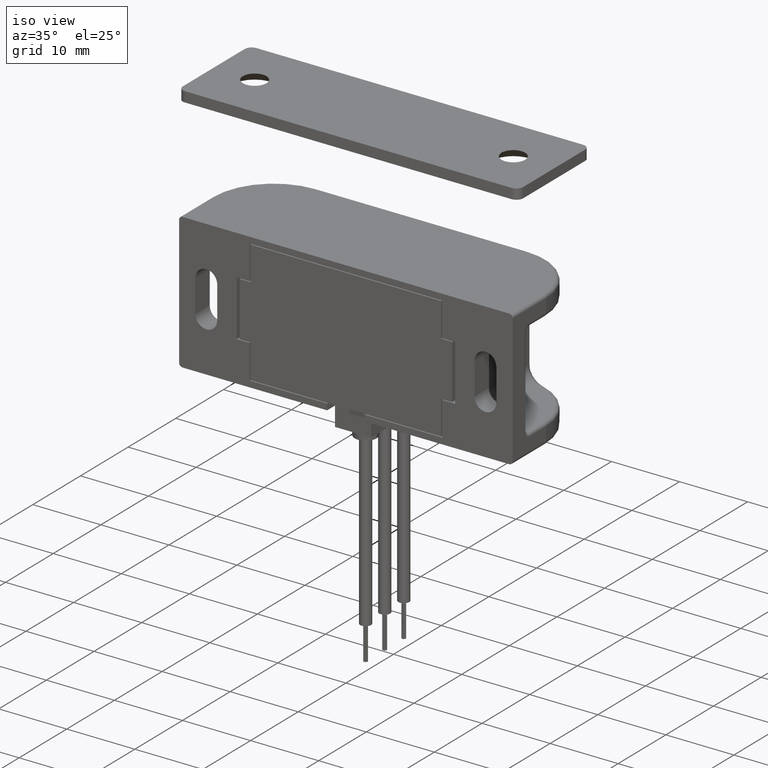
[diagram: clean part render]
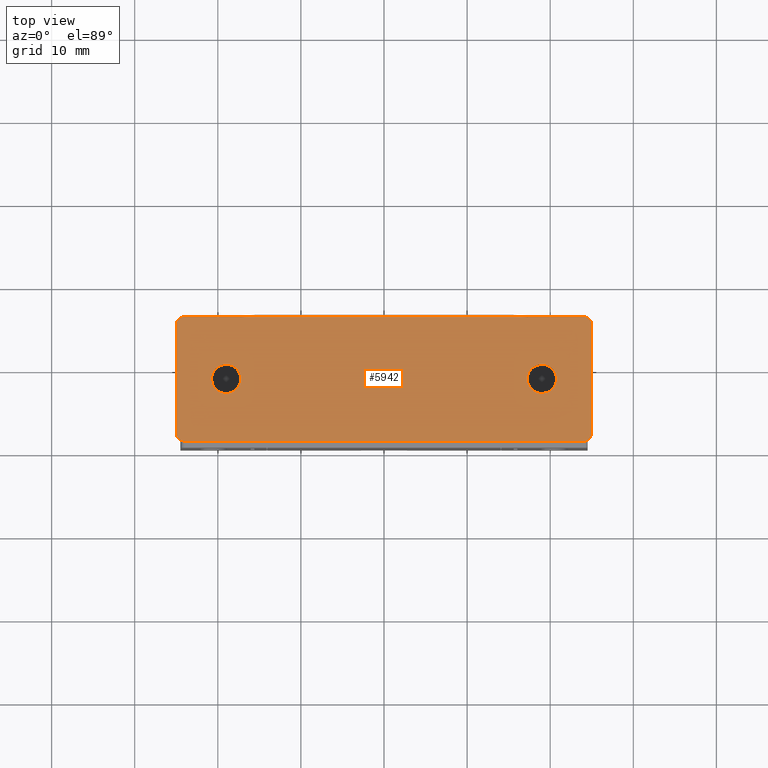
[diagram: tour spotlight — one face highlighted and labeled with its STEP entity id]
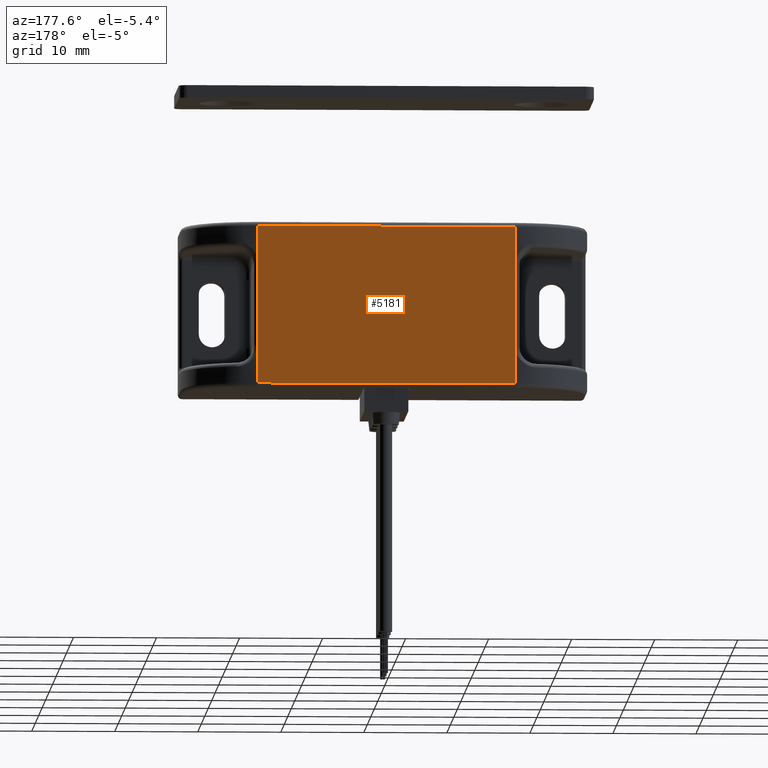
[diagram: tour spotlight — one face highlighted and labeled with its STEP entity id]
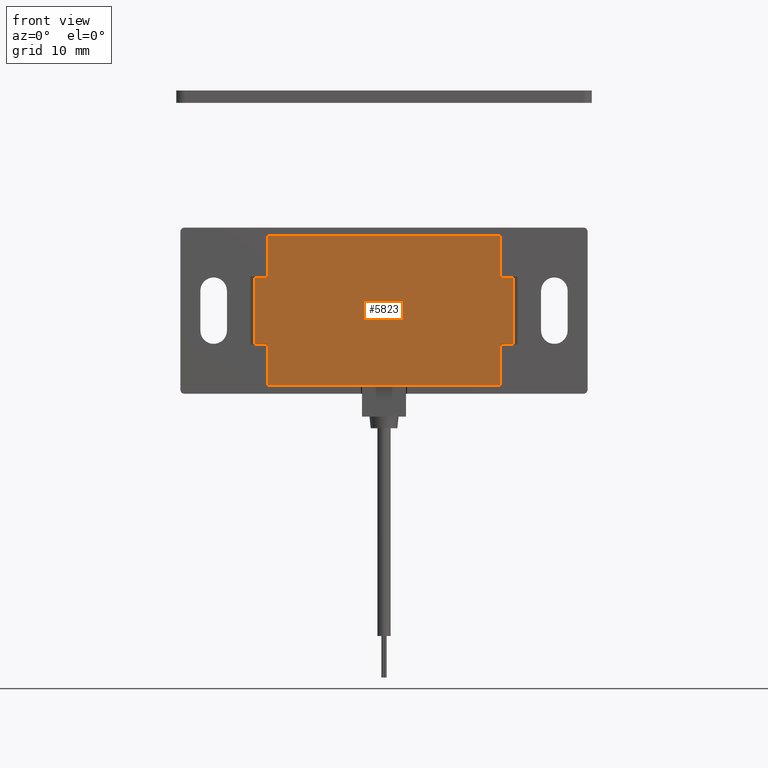
[diagram: tour spotlight — one face highlighted and labeled with its STEP entity id]
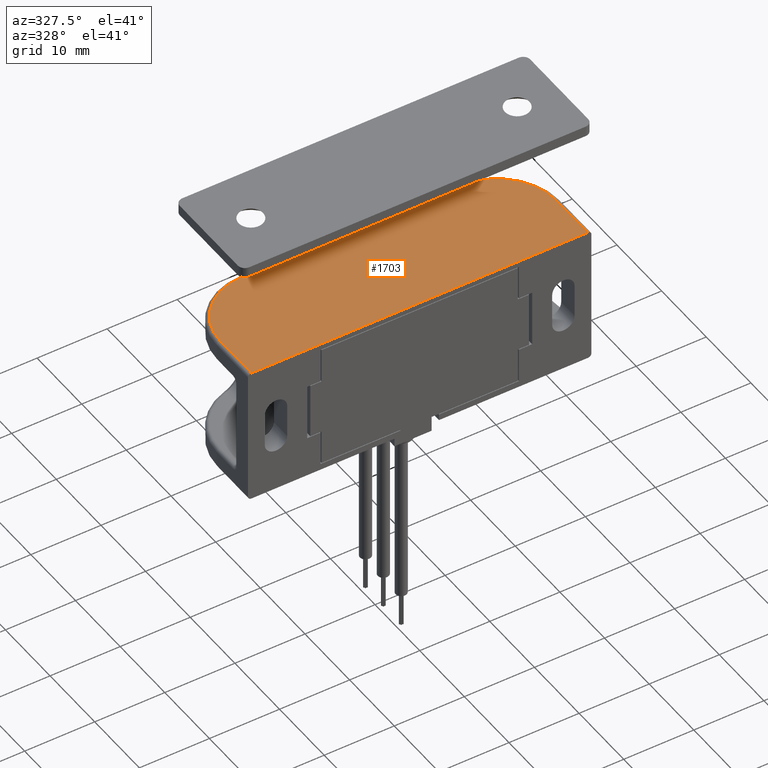
[diagram: tour spotlight — one face highlighted and labeled with its STEP entity id]
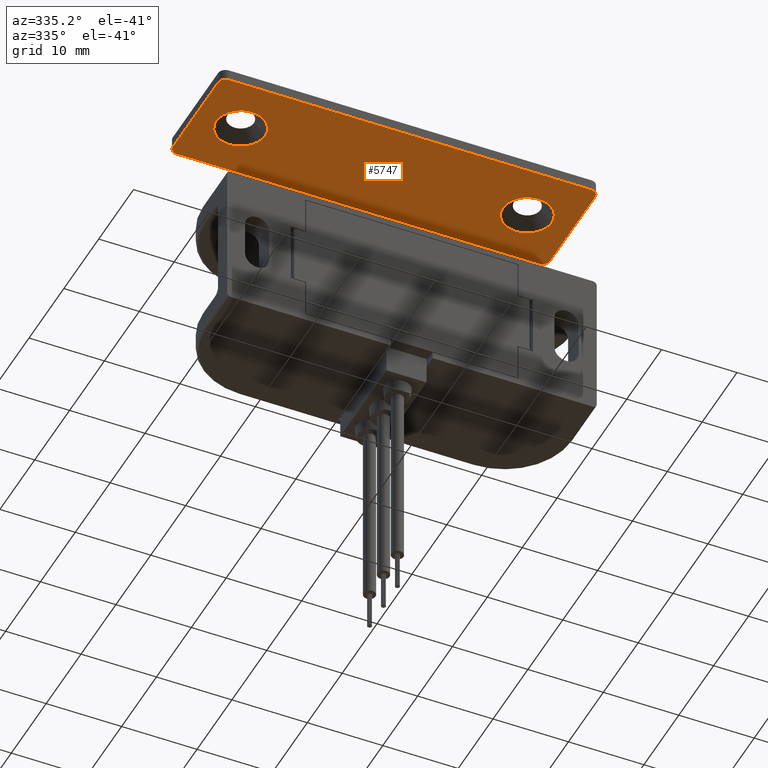
[diagram: tour spotlight — one face highlighted and labeled with its STEP entity id]
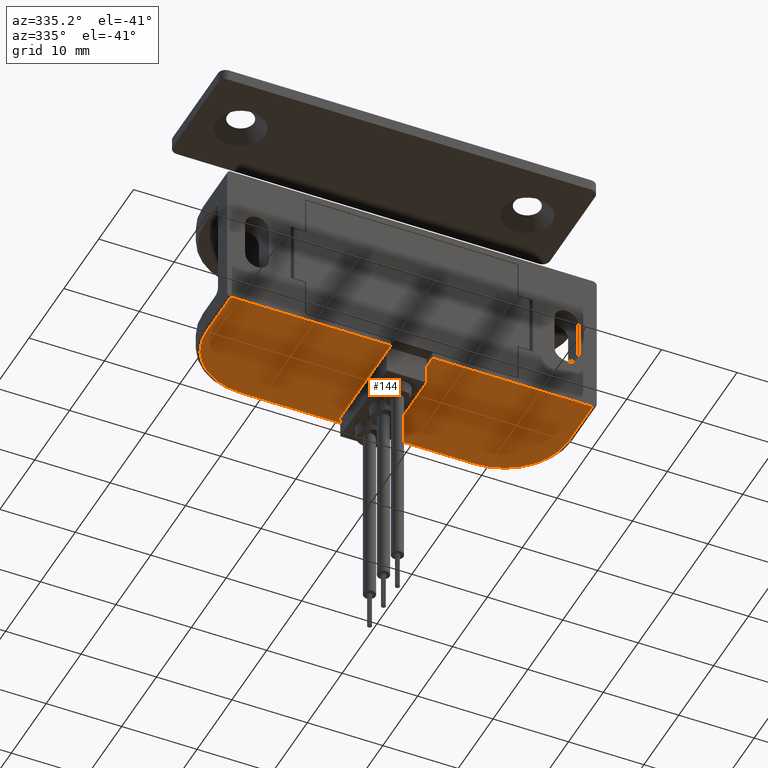
[diagram: tour spotlight — one face highlighted and labeled with its STEP entity id]
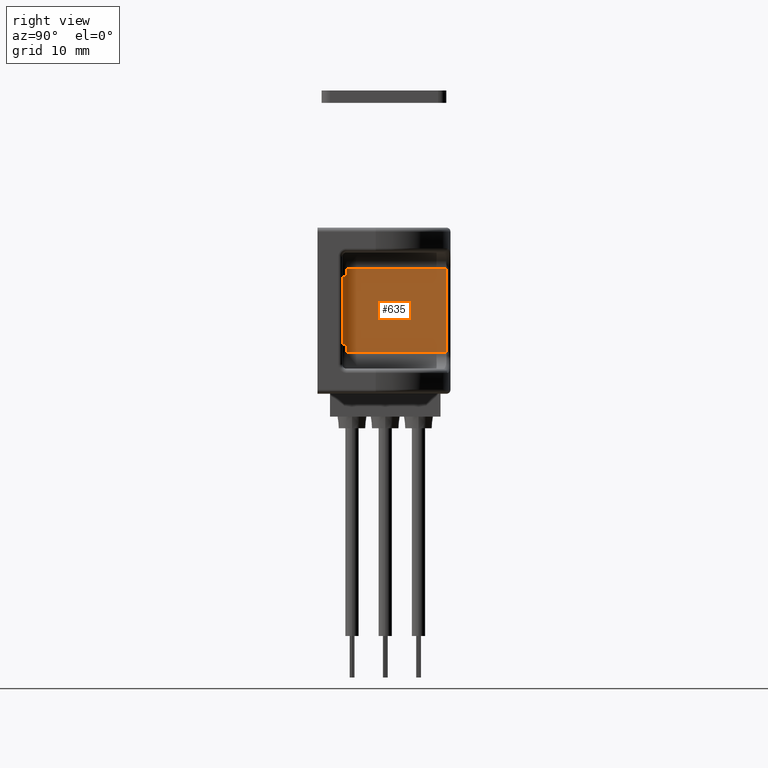
[diagram: tour spotlight — one face highlighted and labeled with its STEP entity id]
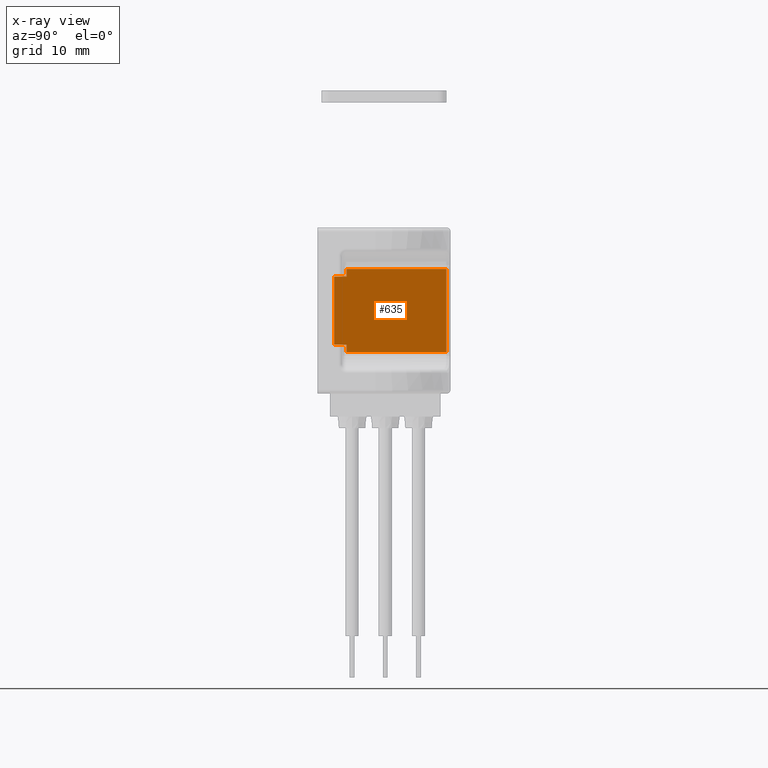
[diagram: x-ray of the same camera — body ghosted, this tour face saturated]
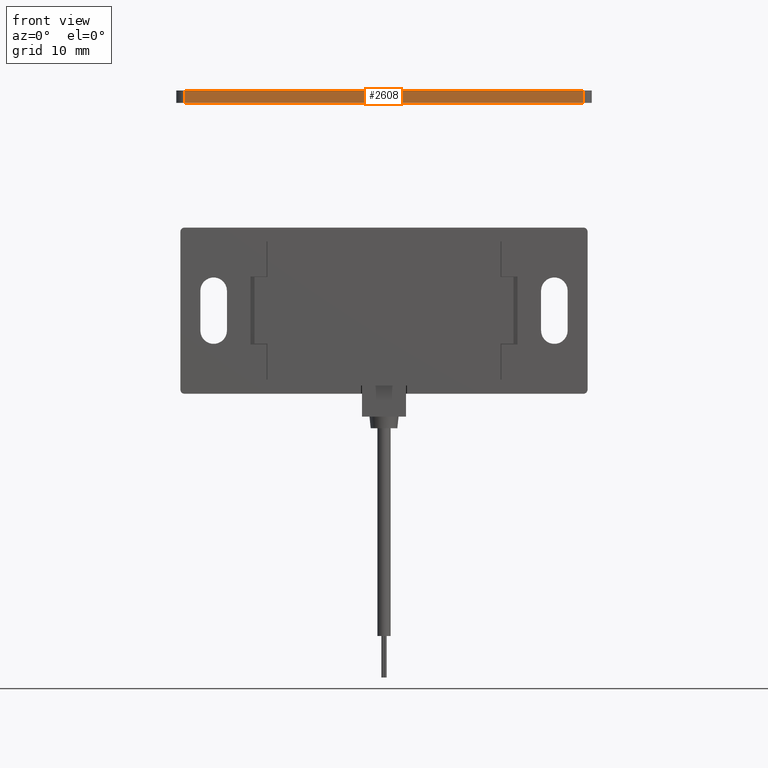
[diagram: tour spotlight — one face highlighted and labeled with its STEP entity id]
A machine part: a face-by-face anatomy tour. The part has 211 B-rep faces; the first image is the clean iso view, then the 8 largest visible faces are spotlighted one at a time (largest first), each with its STEP entity span.

Face 1 — top view, entity #5942. In plain terms, the highlighted planar face has unit normal (0, 0, -1).
Definition (entity closure, byte-faithful):
#92 = DIRECTION ( 'NONE',  ( 1.000000000000000000, 0.0000000000000000000, 0.0000000000000000000 ) ) ;
#93 = EDGE_CURVE ( 'NONE', #952, #228, #2428, .T. ) ;
#228 = VERTEX_POINT ( 'NONE', #3108 ) ;
#234 = CARTESIAN_POINT ( 'NONE',  ( 24.00000000000000400, -7.499999999999999100, 1.500000000000000000 ) ) ;
#272 = CARTESIAN_POINT ( 'NONE',  ( 17.24999999999999600, -3.061616997868384100E-016, 1.500000000000000200 ) ) ;
#283 = CARTESIAN_POINT ( 'NONE',  ( -24.99999999999999600, 7.500000000000000900, 1.500000000000000000 ) ) ;
#291 = VERTEX_POINT ( 'NONE', #1775 ) ;
#371 = DIRECTION ( 'NONE',  ( -0.0000000000000000000, -0.0000000000000000000, 1.000000000000000000 ) ) ;
#404 = FACE_BOUND ( 'NONE', #2111, .T. ) ;
#442 = ORIENTED_EDGE ( 'NONE', *, *, #5309, .T. ) ;
#477 = ORIENTED_EDGE ( 'NONE', *, *, #5220, .T. ) ;
#527 = DIRECTION ( 'NONE',  ( -0.0000000000000000000, -0.0000000000000000000, 1.000000000000000000 ) ) ;
#646 = ORIENTED_EDGE ( 'NONE', *, *, #6115, .F. ) ;
#842 = CARTESIAN_POINT ( 'NONE',  ( -19.00000000000000000, 0.0000000000000000000, 1.500000000000000200 ) ) ;
#843 = AXIS2_PLACEMENT_3D ( 'NONE', #4383, #6429, #3421 ) ;
#846 = VERTEX_POINT ( 'NONE', #5565 ) ;
#868 = EDGE_CURVE ( 'NONE', #846, #4777, #1376, .T. ) ;
#952 = VERTEX_POINT ( 'NONE', #4684 ) ;
#1042 = LINE ( 'NONE', #283, #2248 ) ;
#1104 = VERTEX_POINT ( 'NONE', #5682 ) ;
#1184 = EDGE_CURVE ( 'NONE', #228, #1104, #4969, .T. ) ;
#1220 = VERTEX_POINT ( 'NONE', #4673 ) ;
#1227 = AXIS2_PLACEMENT_3D ( 'NONE', #2276, #5773, #2789 ) ;
#1232 = EDGE_CURVE ( 'NONE', #5188, #1558, #2167, .T. ) ;
#1357 = DIRECTION ( 'NONE',  ( -1.000000000000000000, 0.0000000000000000000, 0.0000000000000000000 ) ) ;
#1376 = LINE ( 'NONE', #5217, #2732 ) ;
#1438 = ORIENTED_EDGE ( 'NONE', *, *, #5355, .T. ) ;
#1556 = CARTESIAN_POINT ( 'NONE',  ( 25.00000000000000400, 6.500000000000000000, 1.500000000000000000 ) ) ;
#1558 = VERTEX_POINT ( 'NONE', #272 ) ;
#1653 = AXIS2_PLACEMENT_3D ( 'NONE', #5431, #2447, #5934 ) ;
#1775 = CARTESIAN_POINT ( 'NONE',  ( -17.24999999999999600, 3.061616997868384100E-016, 1.500000000000000200 ) ) ;
#1843 = CIRCLE ( 'NONE', #4243, 1.000000000000000900 ) ;
#2061 = DIRECTION ( 'NONE',  ( -0.0000000000000000000, 0.0000000000000000000, 1.000000000000000000 ) ) ;
#2066 = ORIENTED_EDGE ( 'NONE', *, *, #3510, .T. ) ;
#2111 = EDGE_LOOP ( 'NONE', ( #3305, #646 ) ) ;
#2113 = DIRECTION ( 'NONE',  ( -0.0000000000000000000, -0.0000000000000000000, -1.000000000000000000 ) ) ;
#2167 = CIRCLE ( 'NONE', #6426, 1.750000000000001600 ) ;
#2248 = VECTOR ( 'NONE', #4302, 1000.000000000000000 ) ;
#2252 = AXIS2_PLACEMENT_3D ( 'NONE', #842, #4348, #1357 ) ;
#2276 = CARTESIAN_POINT ( 'NONE',  ( -23.99999999999999600, -6.499999999999999100, 1.500000000000000000 ) ) ;
#2428 = CIRCLE ( 'NONE', #6034, 1.000000000000000900 ) ;
#2447 = DIRECTION ( 'NONE',  ( -0.0000000000000000000, -0.0000000000000000000, 1.000000000000000000 ) ) ;
#2457 = EDGE_LOOP ( 'NONE', ( #2066, #442 ) ) ;
#2720 = CARTESIAN_POINT ( 'NONE',  ( 25.00000000000000400, -7.499999999999999100, 1.500000000000000000 ) ) ;
#2732 = VECTOR ( 'NONE', #4702, 1000.000000000000000 ) ;
#2789 = DIRECTION ( 'NONE',  ( -1.000000000000000000, 0.0000000000000000000, 0.0000000000000000000 ) ) ;
#2889 = EDGE_LOOP ( 'NONE', ( #5165, #1438, #477, #4262, #4319, #5735, #6431, #5505 ) ) ;
#3108 = CARTESIAN_POINT ( 'NONE',  ( -24.99999999999999600, 6.500000000000000000, 1.500000000000000000 ) ) ;
#3179 = CIRCLE ( 'NONE', #3882, 1.750000000000001600 ) ;
#3193 = CARTESIAN_POINT ( 'NONE',  ( 20.75000000000000000, 0.0000000000000000000, 1.500000000000000200 ) ) ;
#3305 = ORIENTED_EDGE ( 'NONE', *, *, #1232, .F. ) ;
#3406 = CARTESIAN_POINT ( 'NONE',  ( 24.00000000000000400, -6.499999999999999100, 1.500000000000000000 ) ) ;
#3421 = DIRECTION ( 'NONE',  ( -1.000000000000000000, 0.0000000000000000000, -0.0000000000000000000 ) ) ;
#3510 = EDGE_CURVE ( 'NONE', #5595, #291, #4204, .T. ) ;
#3806 = VECTOR ( 'NONE', #5031, 1000.000000000000000 ) ;
#3882 = AXIS2_PLACEMENT_3D ( 'NONE', #5048, #2061, #5569 ) ;
#3911 = DIRECTION ( 'NONE',  ( -1.000000000000000000, 0.0000000000000000000, 0.0000000000000000000 ) ) ;
#3916 = EDGE_CURVE ( 'NONE', #6132, #6036, #4511, .T. ) ;
#4141 = CARTESIAN_POINT ( 'NONE',  ( -20.75000000000000000, 0.0000000000000000000, 1.500000000000000200 ) ) ;
#4155 = AXIS2_PLACEMENT_3D ( 'NONE', #5102, #2113, #5620 ) ;
#4204 = CIRCLE ( 'NONE', #4155, 1.750000000000001600 ) ;
#4243 = AXIS2_PLACEMENT_3D ( 'NONE', #3406, #371, #3911 ) ;
#4261 = FACE_BOUND ( 'NONE', #2457, .T. ) ;
#4262 = ORIENTED_EDGE ( 'NONE', *, *, #3916, .T. ) ;
#4302 = DIRECTION ( 'NONE',  ( -1.000000000000000000, -0.0000000000000000000, -0.0000000000000000000 ) ) ;
#4319 = ORIENTED_EDGE ( 'NONE', *, *, #5814, .T. ) ;
#4348 = DIRECTION ( 'NONE',  ( -0.0000000000000000000, -0.0000000000000000000, -1.000000000000000000 ) ) ;
#4383 = CARTESIAN_POINT ( 'NONE',  ( 0.0000000000000000000, 0.0000000000000000000, 1.500000000000000000 ) ) ;
#4493 = CARTESIAN_POINT ( 'NONE',  ( 19.00000000000000000, 0.0000000000000000000, 1.500000000000000200 ) ) ;
#4511 = CIRCLE ( 'NONE', #1653, 1.000000000000000900 ) ;
#4626 = CARTESIAN_POINT ( 'NONE',  ( -24.99999999999999600, -7.499999999999999100, 1.500000000000000000 ) ) ;
#4673 = CARTESIAN_POINT ( 'NONE',  ( 25.00000000000000400, -6.499999999999999100, 1.500000000000000000 ) ) ;
#4684 = CARTESIAN_POINT ( 'NONE',  ( -23.99999999999999600, 7.500000000000000900, 1.500000000000000000 ) ) ;
#4702 = DIRECTION ( 'NONE',  ( 1.000000000000000000, 0.0000000000000000000, 0.0000000000000000000 ) ) ;
#4777 = VERTEX_POINT ( 'NONE', #234 ) ;
#4802 = CIRCLE ( 'NONE', #2252, 1.750000000000001600 ) ;
#4955 = CARTESIAN_POINT ( 'NONE',  ( 24.00000000000000400, 7.500000000000000900, 1.500000000000000000 ) ) ;
#4969 = LINE ( 'NONE', #4626, #3806 ) ;
#5031 = DIRECTION ( 'NONE',  ( -0.0000000000000000000, -1.000000000000000000, -0.0000000000000000000 ) ) ;
#5048 = CARTESIAN_POINT ( 'NONE',  ( 19.00000000000000000, 0.0000000000000000000, 1.500000000000000200 ) ) ;
#5102 = CARTESIAN_POINT ( 'NONE',  ( -19.00000000000000000, 0.0000000000000000000, 1.500000000000000200 ) ) ;
#5128 = CIRCLE ( 'NONE', #1227, 1.000000000000000900 ) ;
#5165 = ORIENTED_EDGE ( 'NONE', *, *, #868, .T. ) ;
#5188 = VERTEX_POINT ( 'NONE', #3193 ) ;
#5217 = CARTESIAN_POINT ( 'NONE',  ( -24.99999999999999600, -7.499999999999999100, 1.500000000000000000 ) ) ;
#5220 = EDGE_CURVE ( 'NONE', #1220, #6132, #5283, .T. ) ;
#5271 = EDGE_CURVE ( 'NONE', #1104, #846, #5128, .T. ) ;
#5283 = LINE ( 'NONE', #2720, #6477 ) ;
#5309 = EDGE_CURVE ( 'NONE', #291, #5595, #4802, .T. ) ;
#5355 = EDGE_CURVE ( 'NONE', #4777, #1220, #1843, .T. ) ;
#5431 = CARTESIAN_POINT ( 'NONE',  ( 24.00000000000000400, 6.500000000000000900, 1.500000000000000000 ) ) ;
#5505 = ORIENTED_EDGE ( 'NONE', *, *, #5271, .T. ) ;
#5550 = CARTESIAN_POINT ( 'NONE',  ( -23.99999999999999600, 6.500000000000000000, 1.500000000000000000 ) ) ;
#5565 = CARTESIAN_POINT ( 'NONE',  ( -23.99999999999999600, -7.499999999999999100, 1.500000000000000000 ) ) ;
#5569 = DIRECTION ( 'NONE',  ( 1.000000000000000000, 0.0000000000000000000, 0.0000000000000000000 ) ) ;
#5595 = VERTEX_POINT ( 'NONE', #4141 ) ;
#5618 = FACE_OUTER_BOUND ( 'NONE', #2889, .T. ) ;
#5620 = DIRECTION ( 'NONE',  ( -1.000000000000000000, 0.0000000000000000000, 0.0000000000000000000 ) ) ;
#5682 = CARTESIAN_POINT ( 'NONE',  ( -24.99999999999999600, -6.499999999999999100, 1.500000000000000000 ) ) ;
#5712 = DIRECTION ( 'NONE',  ( 0.0000000000000000000, 1.000000000000000000, 0.0000000000000000000 ) ) ;
#5735 = ORIENTED_EDGE ( 'NONE', *, *, #93, .T. ) ;
#5773 = DIRECTION ( 'NONE',  ( -0.0000000000000000000, -0.0000000000000000000, 1.000000000000000000 ) ) ;
#5814 = EDGE_CURVE ( 'NONE', #6036, #952, #1042, .T. ) ;
#5914 = PLANE ( 'NONE',  #843 ) ;
#5934 = DIRECTION ( 'NONE',  ( -1.000000000000000000, 0.0000000000000000000, 0.0000000000000000000 ) ) ;
#5942 = ADVANCED_FACE ( 'NONE', ( #404, #4261, #5618 ), #5914, .F. ) ;
#6034 = AXIS2_PLACEMENT_3D ( 'NONE', #5550, #527, #6048 ) ;
#6036 = VERTEX_POINT ( 'NONE', #4955 ) ;
#6048 = DIRECTION ( 'NONE',  ( -1.000000000000000000, 0.0000000000000000000, 0.0000000000000000000 ) ) ;
#6115 = EDGE_CURVE ( 'NONE', #1558, #5188, #3179, .T. ) ;
#6132 = VERTEX_POINT ( 'NONE', #1556 ) ;
#6426 = AXIS2_PLACEMENT_3D ( 'NONE', #4493, #6469, #92 ) ;
#6429 = DIRECTION ( 'NONE',  ( 0.0000000000000000000, 0.0000000000000000000, -1.000000000000000000 ) ) ;
#6431 = ORIENTED_EDGE ( 'NONE', *, *, #1184, .T. ) ;
#6469 = DIRECTION ( 'NONE',  ( -0.0000000000000000000, 0.0000000000000000000, 1.000000000000000000 ) ) ;
#6477 = VECTOR ( 'NONE', #5712, 1000.000000000000000 ) ;

Face 2 — auxiliary view, entity #5181. In plain terms, the highlighted planar face has unit normal (0, -1, 0).
Definition (entity closure, byte-faithful):
#128 = LINE ( 'NONE', #2616, #5318 ) ;
#332 = EDGE_CURVE ( 'NONE', #3042, #4527, #3821, .T. ) ;
#344 = DIRECTION ( 'NONE',  ( 0.0000000000000000000, 0.0000000000000000000, 1.000000000000000000 ) ) ;
#425 = CARTESIAN_POINT ( 'NONE',  ( -15.49999999999999100, 16.00000000000000000, 9.500000000000000000 ) ) ;
#600 = ORIENTED_EDGE ( 'NONE', *, *, #1617, .T. ) ;
#1246 = ORIENTED_EDGE ( 'NONE', *, *, #3315, .T. ) ;
#1338 = CARTESIAN_POINT ( 'NONE',  ( -15.49999999999999100, 16.00000000000000000, 5.000000000000000000 ) ) ;
#1368 = CARTESIAN_POINT ( 'NONE',  ( 15.50000000000001200, 16.00000000000000000, -9.500000000000000000 ) ) ;
#1613 = VECTOR ( 'NONE', #2565, 1000.000000000000000 ) ;
#1617 = EDGE_CURVE ( 'NONE', #4985, #1688, #4539, .T. ) ;
#1688 = VERTEX_POINT ( 'NONE', #4675 ) ;
#1696 = CARTESIAN_POINT ( 'NONE',  ( 0.0000000000000000000, 16.00000000000000000, 9.500000000000000000 ) ) ;
#1773 = DIRECTION ( 'NONE',  ( 0.0000000000000000000, 0.0000000000000000000, 1.000000000000000000 ) ) ;
#1777 = ORIENTED_EDGE ( 'NONE', *, *, #5901, .T. ) ;
#1911 = EDGE_CURVE ( 'NONE', #3823, #4985, #5498, .T. ) ;
#2088 = EDGE_CURVE ( 'NONE', #6257, #2866, #4535, .T. ) ;
#2189 = DIRECTION ( 'NONE',  ( 0.0000000000000000000, -1.000000000000000000, 0.0000000000000000000 ) ) ;
#2322 = EDGE_LOOP ( 'NONE', ( #1246, #3585, #6081, #6198, #6026, #1777, #6127, #600 ) ) ;
#2565 = DIRECTION ( 'NONE',  ( 0.0000000000000000000, 0.0000000000000000000, -1.000000000000000000 ) ) ;
#2616 = CARTESIAN_POINT ( 'NONE',  ( 15.50000000000001200, 16.00000000000000000, 0.0000000000000000000 ) ) ;
#2733 = CARTESIAN_POINT ( 'NONE',  ( 15.50000000000001200, 16.00000000000000000, -5.000000000000000000 ) ) ;
#2866 = VERTEX_POINT ( 'NONE', #2733 ) ;
#2932 = EDGE_CURVE ( 'NONE', #4527, #6515, #6030, .T. ) ;
#3042 = VERTEX_POINT ( 'NONE', #1368 ) ;
#3164 = PLANE ( 'NONE',  #5733 ) ;
#3261 = VECTOR ( 'NONE', #344, 1000.000000000000000 ) ;
#3315 = EDGE_CURVE ( 'NONE', #1688, #6257, #128, .T. ) ;
#3585 = ORIENTED_EDGE ( 'NONE', *, *, #2088, .T. ) ;
#3821 = LINE ( 'NONE', #4483, #4986 ) ;
#3823 = VERTEX_POINT ( 'NONE', #1338 ) ;
#4229 = VECTOR ( 'NONE', #6189, 1000.000000000000000 ) ;
#4235 = CARTESIAN_POINT ( 'NONE',  ( -15.49999999999999100, 16.00000000000000000, 0.0000000000000000000 ) ) ;
#4371 = VECTOR ( 'NONE', #5985, 1000.000000000000000 ) ;
#4408 = LINE ( 'NONE', #4855, #3261 ) ;
#4483 = CARTESIAN_POINT ( 'NONE',  ( 0.0000000000000000000, 16.00000000000000000, -9.500000000000000000 ) ) ;
#4527 = VERTEX_POINT ( 'NONE', #5466 ) ;
#4535 = LINE ( 'NONE', #5486, #4371 ) ;
#4539 = LINE ( 'NONE', #1696, #4229 ) ;
#4627 = EDGE_CURVE ( 'NONE', #2866, #3042, #5622, .T. ) ;
#4675 = CARTESIAN_POINT ( 'NONE',  ( 15.50000000000001200, 16.00000000000000000, 9.500000000000000000 ) ) ;
#4681 = VECTOR ( 'NONE', #1773, 1000.000000000000000 ) ;
#4805 = CARTESIAN_POINT ( 'NONE',  ( -15.49999999999999100, 16.00000000000000000, 0.0000000000000000000 ) ) ;
#4855 = CARTESIAN_POINT ( 'NONE',  ( -15.49999999999999100, 16.00000000000000000, 0.0000000000000000000 ) ) ;
#4985 = VERTEX_POINT ( 'NONE', #425 ) ;
#4986 = VECTOR ( 'NONE', #5922, 1000.000000000000000 ) ;
#5037 = CARTESIAN_POINT ( 'NONE',  ( 15.50000000000001200, 16.00000000000000000, 0.0000000000000000000 ) ) ;
#5155 = CARTESIAN_POINT ( 'NONE',  ( 0.0000000000000000000, 16.00000000000000000, 0.0000000000000000000 ) ) ;
#5181 = ADVANCED_FACE ( 'NONE', ( #5450 ), #3164, .F. ) ;
#5318 = VECTOR ( 'NONE', #5608, 1000.000000000000000 ) ;
#5450 = FACE_OUTER_BOUND ( 'NONE', #2322, .T. ) ;
#5466 = CARTESIAN_POINT ( 'NONE',  ( -15.49999999999999100, 16.00000000000000000, -9.500000000000000000 ) ) ;
#5486 = CARTESIAN_POINT ( 'NONE',  ( 15.50000000000001200, 16.00000000000000000, 0.0000000000000000000 ) ) ;
#5498 = LINE ( 'NONE', #4805, #5660 ) ;
#5608 = DIRECTION ( 'NONE',  ( 0.0000000000000000000, 0.0000000000000000000, -1.000000000000000000 ) ) ;
#5622 = LINE ( 'NONE', #5037, #1613 ) ;
#5660 = VECTOR ( 'NONE', #5882, 1000.000000000000000 ) ;
#5690 = DIRECTION ( 'NONE',  ( 0.0000000000000000000, -0.0000000000000000000, -1.000000000000000000 ) ) ;
#5733 = AXIS2_PLACEMENT_3D ( 'NONE', #5155, #2189, #5690 ) ;
#5882 = DIRECTION ( 'NONE',  ( 0.0000000000000000000, 0.0000000000000000000, 1.000000000000000000 ) ) ;
#5901 = EDGE_CURVE ( 'NONE', #6515, #3823, #4408, .T. ) ;
#5922 = DIRECTION ( 'NONE',  ( -1.000000000000000000, 0.0000000000000000000, 0.0000000000000000000 ) ) ;
#5985 = DIRECTION ( 'NONE',  ( 0.0000000000000000000, 0.0000000000000000000, -1.000000000000000000 ) ) ;
#6026 = ORIENTED_EDGE ( 'NONE', *, *, #2932, .T. ) ;
#6030 = LINE ( 'NONE', #4235, #4681 ) ;
#6081 = ORIENTED_EDGE ( 'NONE', *, *, #4627, .T. ) ;
#6127 = ORIENTED_EDGE ( 'NONE', *, *, #1911, .T. ) ;
#6150 = CARTESIAN_POINT ( 'NONE',  ( 15.50000000000001200, 16.00000000000000000, 5.000000000000000000 ) ) ;
#6189 = DIRECTION ( 'NONE',  ( 1.000000000000000000, 0.0000000000000000000, 0.0000000000000000000 ) ) ;
#6198 = ORIENTED_EDGE ( 'NONE', *, *, #332, .T. ) ;
#6257 = VERTEX_POINT ( 'NONE', #6150 ) ;
#6355 = CARTESIAN_POINT ( 'NONE',  ( -15.49999999999999100, 16.00000000000000000, -5.000000000000000000 ) ) ;
#6515 = VERTEX_POINT ( 'NONE', #6355 ) ;

Face 3 — front view, entity #5823. In plain terms, the highlighted planar face has unit normal (0, -1, 0).
Definition (entity closure, byte-faithful):
#162 = CARTESIAN_POINT ( 'NONE',  ( -15.60000000000000100, 0.0000000000000000000, 4.000000000000000000 ) ) ;
#302 = EDGE_LOOP ( 'NONE', ( #959, #1082, #2716, #6241, #1013, #674, #5971, #4784, #5481, #3665, #6062, #6351 ) ) ;
#363 = EDGE_CURVE ( 'NONE', #2317, #580, #5150, .T. ) ;
#370 = EDGE_CURVE ( 'NONE', #6273, #4976, #2185, .T. ) ;
#403 = VECTOR ( 'NONE', #3694, 1000.000000000000000 ) ;
#407 = DIRECTION ( 'NONE',  ( -3.469446951953619100E-016, 0.0000000000000000000, 1.000000000000000000 ) ) ;
#508 = VECTOR ( 'NONE', #1925, 1000.000000000000000 ) ;
#513 = VERTEX_POINT ( 'NONE', #2734 ) ;
#580 = VERTEX_POINT ( 'NONE', #4864 ) ;
#674 = ORIENTED_EDGE ( 'NONE', *, *, #1711, .T. ) ;
#703 = CARTESIAN_POINT ( 'NONE',  ( 14.00000000000000000, 0.0000000000000000000, -4.000000000000003600 ) ) ;
#813 = CARTESIAN_POINT ( 'NONE',  ( -14.00000000000000000, -0.0000000000000000000, -9.000000000000001800 ) ) ;
#820 = VECTOR ( 'NONE', #3011, 1000.000000000000000 ) ;
#886 = CARTESIAN_POINT ( 'NONE',  ( -14.00000000000000000, 0.0000000000000000000, 9.000000000000001800 ) ) ;
#913 = LINE ( 'NONE', #6465, #6105 ) ;
#924 = CARTESIAN_POINT ( 'NONE',  ( 14.00000000000000200, 0.0000000000000000000, -8.999999999999998200 ) ) ;
#959 = ORIENTED_EDGE ( 'NONE', *, *, #5845, .T. ) ;
#1013 = ORIENTED_EDGE ( 'NONE', *, *, #370, .T. ) ;
#1082 = ORIENTED_EDGE ( 'NONE', *, *, #5035, .T. ) ;
#1126 = VECTOR ( 'NONE', #407, 1000.000000000000000 ) ;
#1320 = CARTESIAN_POINT ( 'NONE',  ( 0.0000000000000000000, 0.0000000000000000000, 0.0000000000000000000 ) ) ;
#1444 = LINE ( 'NONE', #162, #403 ) ;
#1481 = CARTESIAN_POINT ( 'NONE',  ( -14.00000000000000000, 0.0000000000000000000, 9.000000000000001800 ) ) ;
#1537 = EDGE_CURVE ( 'NONE', #5578, #3013, #5127, .T. ) ;
#1543 = CARTESIAN_POINT ( 'NONE',  ( -15.60000000000000000, -0.0000000000000000000, -4.000000000000000000 ) ) ;
#1590 = VERTEX_POINT ( 'NONE', #4181 ) ;
#1665 = CARTESIAN_POINT ( 'NONE',  ( -14.00000000000000000, -0.0000000000000000000, -4.000000000000000000 ) ) ;
#1711 = EDGE_CURVE ( 'NONE', #4976, #5788, #3932, .T. ) ;
#1828 = DIRECTION ( 'NONE',  ( 0.0000000000000000000, -1.000000000000000000, -0.0000000000000000000 ) ) ;
#1862 = LINE ( 'NONE', #4912, #508 ) ;
#1925 = DIRECTION ( 'NONE',  ( 0.0000000000000000000, 0.0000000000000000000, 1.000000000000000000 ) ) ;
#1966 = VERTEX_POINT ( 'NONE', #886 ) ;
#1972 = DIRECTION ( 'NONE',  ( -1.000000000000000000, 0.0000000000000000000, 0.0000000000000000000 ) ) ;
#2004 = VECTOR ( 'NONE', #3389, 1000.000000000000000 ) ;
#2054 = DIRECTION ( 'NONE',  ( -1.000000000000000000, 0.0000000000000000000, 0.0000000000000000000 ) ) ;
#2083 = VECTOR ( 'NONE', #2505, 1000.000000000000000 ) ;
#2085 = VECTOR ( 'NONE', #6367, 1000.000000000000000 ) ;
#2137 = CARTESIAN_POINT ( 'NONE',  ( 14.00000000000000200, 0.0000000000000000000, -8.999999999999998200 ) ) ;
#2155 = CARTESIAN_POINT ( 'NONE',  ( 15.60000000000000100, 0.0000000000000000000, 4.000000000000003600 ) ) ;
#2160 = LINE ( 'NONE', #6389, #2004 ) ;
#2185 = LINE ( 'NONE', #1543, #820 ) ;
#2302 = VERTEX_POINT ( 'NONE', #2137 ) ;
#2317 = VERTEX_POINT ( 'NONE', #2155 ) ;
#2354 = VECTOR ( 'NONE', #5853, 1000.000000000000000 ) ;
#2418 = CARTESIAN_POINT ( 'NONE',  ( -14.00000000000000000, -0.0000000000000000000, -4.000000000000000000 ) ) ;
#2505 = DIRECTION ( 'NONE',  ( 0.0000000000000000000, 0.0000000000000000000, -1.000000000000000000 ) ) ;
#2716 = ORIENTED_EDGE ( 'NONE', *, *, #3137, .T. ) ;
#2734 = CARTESIAN_POINT ( 'NONE',  ( 14.00000000000000200, 0.0000000000000000000, 8.999999999999998200 ) ) ;
#2863 = CARTESIAN_POINT ( 'NONE',  ( 14.00000000000000200, 0.0000000000000000000, 8.999999999999998200 ) ) ;
#2945 = DIRECTION ( 'NONE',  ( 1.000000000000000000, 0.0000000000000000000, 0.0000000000000000000 ) ) ;
#3011 = DIRECTION ( 'NONE',  ( 1.000000000000000000, 0.0000000000000000000, 0.0000000000000000000 ) ) ;
#3013 = VERTEX_POINT ( 'NONE', #3871 ) ;
#3137 = EDGE_CURVE ( 'NONE', #4846, #1590, #913, .T. ) ;
#3347 = AXIS2_PLACEMENT_3D ( 'NONE', #1320, #1828, #5326 ) ;
#3389 = DIRECTION ( 'NONE',  ( 3.469446951953619100E-016, 0.0000000000000000000, 1.000000000000000000 ) ) ;
#3665 = ORIENTED_EDGE ( 'NONE', *, *, #3929, .T. ) ;
#3668 = VECTOR ( 'NONE', #2054, 1000.000000000000000 ) ;
#3694 = DIRECTION ( 'NONE',  ( 2.168404344971008900E-016, -0.0000000000000000000, -1.000000000000000000 ) ) ;
#3798 = VECTOR ( 'NONE', #2945, 1000.000000000000000 ) ;
#3825 = EDGE_CURVE ( 'NONE', #5788, #2302, #3984, .T. ) ;
#3871 = CARTESIAN_POINT ( 'NONE',  ( 15.60000000000000100, 0.0000000000000000000, -4.000000000000003600 ) ) ;
#3929 = EDGE_CURVE ( 'NONE', #3013, #2317, #1862, .T. ) ;
#3932 = LINE ( 'NONE', #1665, #6448 ) ;
#3961 = LINE ( 'NONE', #924, #1126 ) ;
#3984 = LINE ( 'NONE', #813, #2354 ) ;
#4181 = CARTESIAN_POINT ( 'NONE',  ( -15.60000000000000100, 0.0000000000000000000, 4.000000000000000000 ) ) ;
#4311 = CARTESIAN_POINT ( 'NONE',  ( -14.00000000000000000, 0.0000000000000000000, 4.000000000000000000 ) ) ;
#4723 = LINE ( 'NONE', #1481, #2083 ) ;
#4726 = LINE ( 'NONE', #2863, #2085 ) ;
#4784 = ORIENTED_EDGE ( 'NONE', *, *, #5987, .T. ) ;
#4803 = PLANE ( 'NONE',  #3347 ) ;
#4846 = VERTEX_POINT ( 'NONE', #4311 ) ;
#4864 = CARTESIAN_POINT ( 'NONE',  ( 14.00000000000000000, 0.0000000000000000000, 4.000000000000003600 ) ) ;
#4889 = FACE_OUTER_BOUND ( 'NONE', #302, .T. ) ;
#4912 = CARTESIAN_POINT ( 'NONE',  ( 15.60000000000000100, 0.0000000000000000000, -4.000000000000003600 ) ) ;
#4926 = CARTESIAN_POINT ( 'NONE',  ( 15.60000000000000100, 0.0000000000000000000, 4.000000000000003600 ) ) ;
#4976 = VERTEX_POINT ( 'NONE', #2418 ) ;
#5035 = EDGE_CURVE ( 'NONE', #1966, #4846, #4723, .T. ) ;
#5127 = LINE ( 'NONE', #703, #3798 ) ;
#5135 = CARTESIAN_POINT ( 'NONE',  ( -15.60000000000000000, -0.0000000000000000000, -4.000000000000000000 ) ) ;
#5150 = LINE ( 'NONE', #4926, #3668 ) ;
#5186 = EDGE_CURVE ( 'NONE', #1590, #6273, #1444, .T. ) ;
#5326 = DIRECTION ( 'NONE',  ( 0.0000000000000000000, 0.0000000000000000000, -1.000000000000000000 ) ) ;
#5327 = DIRECTION ( 'NONE',  ( 0.0000000000000000000, 0.0000000000000000000, -1.000000000000000000 ) ) ;
#5341 = EDGE_CURVE ( 'NONE', #580, #513, #2160, .T. ) ;
#5481 = ORIENTED_EDGE ( 'NONE', *, *, #1537, .T. ) ;
#5578 = VERTEX_POINT ( 'NONE', #6140 ) ;
#5788 = VERTEX_POINT ( 'NONE', #5822 ) ;
#5822 = CARTESIAN_POINT ( 'NONE',  ( -14.00000000000000000, -0.0000000000000000000, -9.000000000000001800 ) ) ;
#5823 = ADVANCED_FACE ( 'NONE', ( #4889 ), #4803, .T. ) ;
#5845 = EDGE_CURVE ( 'NONE', #513, #1966, #4726, .T. ) ;
#5853 = DIRECTION ( 'NONE',  ( 1.000000000000000000, 0.0000000000000000000, 1.239088197126290600E-016 ) ) ;
#5971 = ORIENTED_EDGE ( 'NONE', *, *, #3825, .T. ) ;
#5987 = EDGE_CURVE ( 'NONE', #2302, #5578, #3961, .T. ) ;
#6062 = ORIENTED_EDGE ( 'NONE', *, *, #363, .T. ) ;
#6105 = VECTOR ( 'NONE', #1972, 1000.000000000000000 ) ;
#6140 = CARTESIAN_POINT ( 'NONE',  ( 14.00000000000000000, 0.0000000000000000000, -4.000000000000003600 ) ) ;
#6241 = ORIENTED_EDGE ( 'NONE', *, *, #5186, .T. ) ;
#6273 = VERTEX_POINT ( 'NONE', #5135 ) ;
#6351 = ORIENTED_EDGE ( 'NONE', *, *, #5341, .T. ) ;
#6367 = DIRECTION ( 'NONE',  ( -1.000000000000000000, 0.0000000000000000000, 1.239088197126290600E-016 ) ) ;
#6389 = CARTESIAN_POINT ( 'NONE',  ( 14.00000000000000000, 0.0000000000000000000, 4.000000000000003600 ) ) ;
#6448 = VECTOR ( 'NONE', #5327, 1000.000000000000000 ) ;
#6465 = CARTESIAN_POINT ( 'NONE',  ( -14.00000000000000000, 0.0000000000000000000, 4.000000000000000000 ) ) ;

Face 4 — auxiliary view, entity #1703. In plain terms, the highlighted planar face has unit normal (0, 0, -1).
Definition (entity closure, byte-faithful):
#71 = FACE_OUTER_BOUND ( 'NONE', #5571, .T. ) ;
#125 = AXIS2_PLACEMENT_3D ( 'NONE', #1797, #5288, #2309 ) ;
#222 = CARTESIAN_POINT ( 'NONE',  ( 24.00000000000001100, 7.000000000000000900, 10.00000000000000000 ) ) ;
#338 = DIRECTION ( 'NONE',  ( -1.000000000000000000, -0.0000000000000000000, -0.0000000000000000000 ) ) ;
#509 = EDGE_CURVE ( 'NONE', #2909, #836, #5065, .T. ) ;
#525 = ORIENTED_EDGE ( 'NONE', *, *, #2925, .T. ) ;
#809 = CIRCLE ( 'NONE', #125, 8.499999999999998200 ) ;
#836 = VERTEX_POINT ( 'NONE', #4932 ) ;
#877 = CARTESIAN_POINT ( 'NONE',  ( -23.99999999999998900, 7.000000000000000900, 10.00000000000000000 ) ) ;
#1108 = ORIENTED_EDGE ( 'NONE', *, *, #1270, .T. ) ;
#1270 = EDGE_CURVE ( 'NONE', #1739, #2682, #3345, .T. ) ;
#1540 = VECTOR ( 'NONE', #3374, 1000.000000000000000 ) ;
#1703 = ADVANCED_FACE ( 'NONE', ( #71 ), #3860, .F. ) ;
#1739 = VERTEX_POINT ( 'NONE', #877 ) ;
#1797 = CARTESIAN_POINT ( 'NONE',  ( 15.50000000000001200, 7.000000000000000900, 10.00000000000000000 ) ) ;
#1908 = DIRECTION ( 'NONE',  ( 0.0000000000000000000, 0.0000000000000000000, -1.000000000000000000 ) ) ;
#2017 = AXIS2_PLACEMENT_3D ( 'NONE', #5350, #1908, #2403 ) ;
#2086 = CARTESIAN_POINT ( 'NONE',  ( -24.49999999999998900, 15.50000000000000000, 10.00000000000000000 ) ) ;
#2138 = CARTESIAN_POINT ( 'NONE',  ( -15.49999999999999100, 7.000000000000000900, 10.00000000000000000 ) ) ;
#2309 = DIRECTION ( 'NONE',  ( -1.000000000000000000, 0.0000000000000000000, 0.0000000000000000000 ) ) ;
#2403 = DIRECTION ( 'NONE',  ( -1.000000000000000000, 0.0000000000000000000, -0.0000000000000000000 ) ) ;
#2421 = VERTEX_POINT ( 'NONE', #222 ) ;
#2468 = CARTESIAN_POINT ( 'NONE',  ( 24.00000000000001100, 0.0000000000000000000, 10.00000000000000000 ) ) ;
#2476 = ORIENTED_EDGE ( 'NONE', *, *, #509, .T. ) ;
#2651 = DIRECTION ( 'NONE',  ( -1.000000000000000000, 0.0000000000000000000, 0.0000000000000000000 ) ) ;
#2652 = CIRCLE ( 'NONE', #2810, 8.499999999999998200 ) ;
#2682 = VERTEX_POINT ( 'NONE', #5575 ) ;
#2810 = AXIS2_PLACEMENT_3D ( 'NONE', #2138, #5645, #2651 ) ;
#2909 = VERTEX_POINT ( 'NONE', #4730 ) ;
#2925 = EDGE_CURVE ( 'NONE', #5992, #2421, #4839, .T. ) ;
#3345 = LINE ( 'NONE', #6525, #5848 ) ;
#3374 = DIRECTION ( 'NONE',  ( 1.000000000000000000, 0.0000000000000000000, 0.0000000000000000000 ) ) ;
#3523 = VECTOR ( 'NONE', #4216, 1000.000000000000000 ) ;
#3550 = DIRECTION ( 'NONE',  ( 0.0000000000000000000, -1.000000000000000000, 0.0000000000000000000 ) ) ;
#3704 = ORIENTED_EDGE ( 'NONE', *, *, #4403, .T. ) ;
#3812 = ORIENTED_EDGE ( 'NONE', *, *, #4791, .T. ) ;
#3860 = PLANE ( 'NONE',  #2017 ) ;
#4216 = DIRECTION ( 'NONE',  ( -0.0000000000000000000, 1.000000000000000000, -0.0000000000000000000 ) ) ;
#4403 = EDGE_CURVE ( 'NONE', #2682, #5992, #5382, .T. ) ;
#4730 = CARTESIAN_POINT ( 'NONE',  ( 15.50000000000001200, 15.50000000000000000, 10.00000000000000000 ) ) ;
#4791 = EDGE_CURVE ( 'NONE', #2421, #2909, #809, .T. ) ;
#4839 = LINE ( 'NONE', #5252, #3523 ) ;
#4932 = CARTESIAN_POINT ( 'NONE',  ( -15.49999999999999100, 15.50000000000000000, 10.00000000000000000 ) ) ;
#5065 = LINE ( 'NONE', #2086, #6255 ) ;
#5252 = CARTESIAN_POINT ( 'NONE',  ( 24.00000000000001100, 16.00000000000000000, 10.00000000000000000 ) ) ;
#5288 = DIRECTION ( 'NONE',  ( -0.0000000000000000000, -0.0000000000000000000, 1.000000000000000000 ) ) ;
#5350 = CARTESIAN_POINT ( 'NONE',  ( -24.49999999999998900, 16.00000000000000000, 10.00000000000000000 ) ) ;
#5382 = LINE ( 'NONE', #6376, #1540 ) ;
#5562 = EDGE_CURVE ( 'NONE', #836, #1739, #2652, .T. ) ;
#5571 = EDGE_LOOP ( 'NONE', ( #6104, #1108, #3704, #525, #3812, #2476 ) ) ;
#5575 = CARTESIAN_POINT ( 'NONE',  ( -23.99999999999998900, 0.0000000000000000000, 10.00000000000000000 ) ) ;
#5645 = DIRECTION ( 'NONE',  ( -0.0000000000000000000, -0.0000000000000000000, 1.000000000000000000 ) ) ;
#5848 = VECTOR ( 'NONE', #3550, 1000.000000000000000 ) ;
#5992 = VERTEX_POINT ( 'NONE', #2468 ) ;
#6104 = ORIENTED_EDGE ( 'NONE', *, *, #5562, .T. ) ;
#6255 = VECTOR ( 'NONE', #338, 1000.000000000000000 ) ;
#6376 = CARTESIAN_POINT ( 'NONE',  ( -24.49999999999998900, 0.0000000000000000000, 10.00000000000000000 ) ) ;
#6525 = CARTESIAN_POINT ( 'NONE',  ( -23.99999999999998900, 16.00000000000000000, 10.00000000000000000 ) ) ;

Face 5 — auxiliary view, entity #5747. In plain terms, the highlighted planar face has unit normal (0, 0, -1).
Definition (entity closure, byte-faithful):
#27 = FACE_BOUND ( 'NONE', #1811, .T. ) ;
#117 = VERTEX_POINT ( 'NONE', #3595 ) ;
#170 = ORIENTED_EDGE ( 'NONE', *, *, #3055, .T. ) ;
#221 = ORIENTED_EDGE ( 'NONE', *, *, #5770, .T. ) ;
#236 = ORIENTED_EDGE ( 'NONE', *, *, #5168, .F. ) ;
#238 = CARTESIAN_POINT ( 'NONE',  ( 0.0000000000000000000, 0.0000000000000000000, 0.0000000000000000000 ) ) ;
#248 = CIRCLE ( 'NONE', #4701, 3.249999999999999600 ) ;
#259 = DIRECTION ( 'NONE',  ( 0.0000000000000000000, 0.0000000000000000000, -1.000000000000000000 ) ) ;
#336 = ORIENTED_EDGE ( 'NONE', *, *, #3086, .F. ) ;
#451 = DIRECTION ( 'NONE',  ( 1.000000000000000000, 0.0000000000000000000, 0.0000000000000000000 ) ) ;
#463 = CARTESIAN_POINT ( 'NONE',  ( 24.00000000000000400, -7.499999999999999100, 0.0000000000000000000 ) ) ;
#568 = AXIS2_PLACEMENT_3D ( 'NONE', #2920, #6424, #3416 ) ;
#615 = ORIENTED_EDGE ( 'NONE', *, *, #3878, .F. ) ;
#804 = CIRCLE ( 'NONE', #1192, 3.249999999999999600 ) ;
#878 = VECTOR ( 'NONE', #5636, 1000.000000000000000 ) ;
#949 = VERTEX_POINT ( 'NONE', #5734 ) ;
#960 = AXIS2_PLACEMENT_3D ( 'NONE', #4382, #1395, #4891 ) ;
#987 = CIRCLE ( 'NONE', #960, 3.249999999999999600 ) ;
#1020 = EDGE_CURVE ( 'NONE', #6445, #5811, #4574, .T. ) ;
#1037 = CARTESIAN_POINT ( 'NONE',  ( -24.99999999999999600, -7.499999999999999100, 0.0000000000000000000 ) ) ;
#1192 = AXIS2_PLACEMENT_3D ( 'NONE', #1510, #5006, #2018 ) ;
#1242 = VECTOR ( 'NONE', #3439, 1000.000000000000000 ) ;
#1268 = DIRECTION ( 'NONE',  ( 0.0000000000000000000, 0.0000000000000000000, -1.000000000000000000 ) ) ;
#1324 = AXIS2_PLACEMENT_3D ( 'NONE', #3302, #259, #3788 ) ;
#1371 = AXIS2_PLACEMENT_3D ( 'NONE', #5753, #4747, #4658 ) ;
#1395 = DIRECTION ( 'NONE',  ( -0.0000000000000000000, -0.0000000000000000000, -1.000000000000000000 ) ) ;
#1439 = AXIS2_PLACEMENT_3D ( 'NONE', #4476, #1496, #4990 ) ;
#1496 = DIRECTION ( 'NONE',  ( 0.0000000000000000000, 0.0000000000000000000, -1.000000000000000000 ) ) ;
#1510 = CARTESIAN_POINT ( 'NONE',  ( 19.00000000000000000, 0.0000000000000000000, 0.0000000000000000000 ) ) ;
#1518 = CARTESIAN_POINT ( 'NONE',  ( 25.00000000000000400, -6.499999999999999100, 0.0000000000000000000 ) ) ;
#1659 = AXIS2_PLACEMENT_3D ( 'NONE', #238, #1268, #4764 ) ;
#1674 = DIRECTION ( 'NONE',  ( -0.0000000000000000000, -0.0000000000000000000, -1.000000000000000000 ) ) ;
#1811 = EDGE_LOOP ( 'NONE', ( #236, #615 ) ) ;
#1946 = ORIENTED_EDGE ( 'NONE', *, *, #6289, .F. ) ;
#2018 = DIRECTION ( 'NONE',  ( 1.000000000000000000, 0.0000000000000000000, 0.0000000000000000000 ) ) ;
#2171 = CARTESIAN_POINT ( 'NONE',  ( -24.99999999999999600, 7.500000000000000900, 0.0000000000000000000 ) ) ;
#2178 = EDGE_CURVE ( 'NONE', #3069, #5547, #2913, .T. ) ;
#2263 = ORIENTED_EDGE ( 'NONE', *, *, #1020, .T. ) ;
#2480 = ORIENTED_EDGE ( 'NONE', *, *, #5489, .T. ) ;
#2489 = CARTESIAN_POINT ( 'NONE',  ( -23.99999999999999600, 7.500000000000000900, 0.0000000000000000000 ) ) ;
#2592 = LINE ( 'NONE', #6447, #1242 ) ;
#2728 = FACE_BOUND ( 'NONE', #3287, .T. ) ;
#2788 = PLANE ( 'NONE',  #1659 ) ;
#2841 = ORIENTED_EDGE ( 'NONE', *, *, #3872, .F. ) ;
#2913 = LINE ( 'NONE', #1037, #5250 ) ;
#2920 = CARTESIAN_POINT ( 'NONE',  ( 24.00000000000000400, -6.499999999999999100, 0.0000000000000000000 ) ) ;
#3055 = EDGE_CURVE ( 'NONE', #4595, #4550, #5239, .T. ) ;
#3069 = VERTEX_POINT ( 'NONE', #4887 ) ;
#3086 = EDGE_CURVE ( 'NONE', #4595, #5811, #2592, .T. ) ;
#3287 = EDGE_LOOP ( 'NONE', ( #3679, #5706 ) ) ;
#3291 = CARTESIAN_POINT ( 'NONE',  ( 24.00000000000000400, 7.500000000000000900, 0.0000000000000000000 ) ) ;
#3302 = CARTESIAN_POINT ( 'NONE',  ( -23.99999999999999600, 6.500000000000000000, 0.0000000000000000000 ) ) ;
#3336 = VERTEX_POINT ( 'NONE', #5110 ) ;
#3403 = DIRECTION ( 'NONE',  ( 1.000000000000000000, 0.0000000000000000000, 0.0000000000000000000 ) ) ;
#3416 = DIRECTION ( 'NONE',  ( -1.000000000000000000, 0.0000000000000000000, 0.0000000000000000000 ) ) ;
#3439 = DIRECTION ( 'NONE',  ( 0.0000000000000000000, 1.000000000000000000, 0.0000000000000000000 ) ) ;
#3478 = DIRECTION ( 'NONE',  ( -0.0000000000000000000, 0.0000000000000000000, 1.000000000000000000 ) ) ;
#3595 = CARTESIAN_POINT ( 'NONE',  ( -22.25000000000000000, 0.0000000000000000000, 0.0000000000000000000 ) ) ;
#3670 = VECTOR ( 'NONE', #3403, 1000.000000000000000 ) ;
#3679 = ORIENTED_EDGE ( 'NONE', *, *, #6067, .T. ) ;
#3788 = DIRECTION ( 'NONE',  ( -1.000000000000000000, 0.0000000000000000000, 0.0000000000000000000 ) ) ;
#3804 = CARTESIAN_POINT ( 'NONE',  ( -23.99999999999999600, -7.499999999999999100, 0.0000000000000000000 ) ) ;
#3814 = CARTESIAN_POINT ( 'NONE',  ( 25.00000000000000400, 6.500000000000000000, 0.0000000000000000000 ) ) ;
#3872 = EDGE_CURVE ( 'NONE', #4829, #4550, #6020, .T. ) ;
#3875 = LINE ( 'NONE', #2171, #878 ) ;
#3878 = EDGE_CURVE ( 'NONE', #949, #117, #987, .T. ) ;
#3883 = FACE_OUTER_BOUND ( 'NONE', #6428, .T. ) ;
#3970 = EDGE_CURVE ( 'NONE', #3336, #5997, #5227, .T. ) ;
#4007 = AXIS2_PLACEMENT_3D ( 'NONE', #6492, #3478, #451 ) ;
#4102 = CARTESIAN_POINT ( 'NONE',  ( -24.99999999999999600, -6.499999999999999100, 0.0000000000000000000 ) ) ;
#4382 = CARTESIAN_POINT ( 'NONE',  ( -19.00000000000000000, 0.0000000000000000000, 0.0000000000000000000 ) ) ;
#4476 = CARTESIAN_POINT ( 'NONE',  ( -23.99999999999999600, -6.499999999999999100, 0.0000000000000000000 ) ) ;
#4524 = DIRECTION ( 'NONE',  ( -0.0000000000000000000, -1.000000000000000000, -0.0000000000000000000 ) ) ;
#4550 = VERTEX_POINT ( 'NONE', #463 ) ;
#4574 = CIRCLE ( 'NONE', #1371, 1.000000000000000900 ) ;
#4595 = VERTEX_POINT ( 'NONE', #1518 ) ;
#4656 = CARTESIAN_POINT ( 'NONE',  ( -19.00000000000000000, 0.0000000000000000000, 0.0000000000000000000 ) ) ;
#4658 = DIRECTION ( 'NONE',  ( -1.000000000000000000, 0.0000000000000000000, 0.0000000000000000000 ) ) ;
#4701 = AXIS2_PLACEMENT_3D ( 'NONE', #4656, #1674, #5178 ) ;
#4747 = DIRECTION ( 'NONE',  ( 0.0000000000000000000, 0.0000000000000000000, -1.000000000000000000 ) ) ;
#4764 = DIRECTION ( 'NONE',  ( -1.000000000000000000, 0.0000000000000000000, -0.0000000000000000000 ) ) ;
#4829 = VERTEX_POINT ( 'NONE', #3804 ) ;
#4887 = CARTESIAN_POINT ( 'NONE',  ( -24.99999999999999600, 6.500000000000000000, 0.0000000000000000000 ) ) ;
#4891 = DIRECTION ( 'NONE',  ( -1.000000000000000000, 0.0000000000000000000, 0.0000000000000000000 ) ) ;
#4983 = ORIENTED_EDGE ( 'NONE', *, *, #2178, .F. ) ;
#4990 = DIRECTION ( 'NONE',  ( -1.000000000000000000, 0.0000000000000000000, 0.0000000000000000000 ) ) ;
#5006 = DIRECTION ( 'NONE',  ( -0.0000000000000000000, 0.0000000000000000000, 1.000000000000000000 ) ) ;
#5110 = CARTESIAN_POINT ( 'NONE',  ( 15.75000000000000000, -3.980102097228897200E-016, 0.0000000000000000000 ) ) ;
#5168 = EDGE_CURVE ( 'NONE', #117, #949, #248, .T. ) ;
#5178 = DIRECTION ( 'NONE',  ( -1.000000000000000000, 0.0000000000000000000, 0.0000000000000000000 ) ) ;
#5227 = CIRCLE ( 'NONE', #4007, 3.249999999999999600 ) ;
#5239 = CIRCLE ( 'NONE', #568, 1.000000000000000900 ) ;
#5250 = VECTOR ( 'NONE', #4524, 1000.000000000000000 ) ;
#5489 = EDGE_CURVE ( 'NONE', #4829, #5547, #6484, .T. ) ;
#5547 = VERTEX_POINT ( 'NONE', #4102 ) ;
#5636 = DIRECTION ( 'NONE',  ( -1.000000000000000000, -0.0000000000000000000, -0.0000000000000000000 ) ) ;
#5706 = ORIENTED_EDGE ( 'NONE', *, *, #3970, .T. ) ;
#5734 = CARTESIAN_POINT ( 'NONE',  ( -15.75000000000000000, 3.980102097228897200E-016, 0.0000000000000000000 ) ) ;
#5747 = ADVANCED_FACE ( 'NONE', ( #2728, #27, #3883 ), #2788, .T. ) ;
#5753 = CARTESIAN_POINT ( 'NONE',  ( 24.00000000000000400, 6.500000000000000900, 0.0000000000000000000 ) ) ;
#5770 = EDGE_CURVE ( 'NONE', #3069, #6024, #6399, .T. ) ;
#5811 = VERTEX_POINT ( 'NONE', #3814 ) ;
#5960 = CARTESIAN_POINT ( 'NONE',  ( 22.25000000000000000, 0.0000000000000000000, 0.0000000000000000000 ) ) ;
#5997 = VERTEX_POINT ( 'NONE', #5960 ) ;
#6020 = LINE ( 'NONE', #6401, #3670 ) ;
#6024 = VERTEX_POINT ( 'NONE', #2489 ) ;
#6067 = EDGE_CURVE ( 'NONE', #5997, #3336, #804, .T. ) ;
#6289 = EDGE_CURVE ( 'NONE', #6445, #6024, #3875, .T. ) ;
#6399 = CIRCLE ( 'NONE', #1324, 1.000000000000000900 ) ;
#6401 = CARTESIAN_POINT ( 'NONE',  ( -24.99999999999999600, -7.499999999999999100, 0.0000000000000000000 ) ) ;
#6424 = DIRECTION ( 'NONE',  ( 0.0000000000000000000, 0.0000000000000000000, -1.000000000000000000 ) ) ;
#6428 = EDGE_LOOP ( 'NONE', ( #336, #170, #2841, #2480, #4983, #221, #1946, #2263 ) ) ;
#6445 = VERTEX_POINT ( 'NONE', #3291 ) ;
#6447 = CARTESIAN_POINT ( 'NONE',  ( 25.00000000000000400, -7.499999999999999100, 0.0000000000000000000 ) ) ;
#6484 = CIRCLE ( 'NONE', #1439, 1.000000000000000900 ) ;
#6492 = CARTESIAN_POINT ( 'NONE',  ( 19.00000000000000000, 0.0000000000000000000, 0.0000000000000000000 ) ) ;

Face 6 — auxiliary view, entity #144. In plain terms, the highlighted planar face has unit normal (0, 0, 1).
Definition (entity closure, byte-faithful):
#23 = VECTOR ( 'NONE', #5667, 1000.000000000000000 ) ;
#73 = ORIENTED_EDGE ( 'NONE', *, *, #3717, .T. ) ;
#144 = ADVANCED_FACE ( 'NONE', ( #2265 ), #3994, .F. ) ;
#256 = DIRECTION ( 'NONE',  ( -0.0000000000000000000, -0.0000000000000000000, -1.000000000000000000 ) ) ;
#280 = VERTEX_POINT ( 'NONE', #2291 ) ;
#296 = EDGE_CURVE ( 'NONE', #280, #1565, #3981, .T. ) ;
#427 = CIRCLE ( 'NONE', #4781, 8.499999999999998200 ) ;
#569 = VECTOR ( 'NONE', #1844, 1000.000000000000000 ) ;
#639 = CARTESIAN_POINT ( 'NONE',  ( -23.99999999999998900, 16.00000000000000000, -10.00000000000000000 ) ) ;
#803 = CARTESIAN_POINT ( 'NONE',  ( -23.99999999999998900, 0.0000000000000000000, -10.00000000000000000 ) ) ;
#1022 = CARTESIAN_POINT ( 'NONE',  ( 24.00000000000001100, 16.00000000000000000, -10.00000000000000000 ) ) ;
#1080 = DIRECTION ( 'NONE',  ( 1.000000000000000000, 0.0000000000000000000, -0.0000000000000000000 ) ) ;
#1106 = CARTESIAN_POINT ( 'NONE',  ( -24.49999999999998900, 0.0000000000000000000, -10.00000000000000000 ) ) ;
#1110 = CARTESIAN_POINT ( 'NONE',  ( -15.49999999999999100, 15.50000000000000000, -10.00000000000000000 ) ) ;
#1150 = LINE ( 'NONE', #5344, #1315 ) ;
#1193 = CARTESIAN_POINT ( 'NONE',  ( 2.749999999999998200, -6.735557395310442000E-016, -10.00000000000000000 ) ) ;
#1284 = EDGE_CURVE ( 'NONE', #2190, #6356, #1367, .T. ) ;
#1299 = AXIS2_PLACEMENT_3D ( 'NONE', #5766, #2786, #6282 ) ;
#1315 = VECTOR ( 'NONE', #2366, 1000.000000000000000 ) ;
#1352 = ORIENTED_EDGE ( 'NONE', *, *, #4622, .T. ) ;
#1367 = LINE ( 'NONE', #2498, #23 ) ;
#1442 = VECTOR ( 'NONE', #6197, 1000.000000000000000 ) ;
#1445 = LINE ( 'NONE', #3924, #5451 ) ;
#1500 = EDGE_CURVE ( 'NONE', #1565, #3526, #5447, .T. ) ;
#1542 = AXIS2_PLACEMENT_3D ( 'NONE', #4583, #4098, #1080 ) ;
#1546 = DIRECTION ( 'NONE',  ( 0.0000000000000000000, -1.000000000000000000, 0.0000000000000000000 ) ) ;
#1565 = VERTEX_POINT ( 'NONE', #803 ) ;
#1615 = CARTESIAN_POINT ( 'NONE',  ( -2.750000000000001800, 15.00000000000000000, -10.00000000000000000 ) ) ;
#1720 = ORIENTED_EDGE ( 'NONE', *, *, #1284, .T. ) ;
#1844 = DIRECTION ( 'NONE',  ( -2.312964634635743000E-016, -1.000000000000000000, -0.0000000000000000000 ) ) ;
#1921 = DIRECTION ( 'NONE',  ( -1.000000000000000000, -0.0000000000000000000, -0.0000000000000000000 ) ) ;
#1923 = LINE ( 'NONE', #5348, #569 ) ;
#1998 = ORIENTED_EDGE ( 'NONE', *, *, #296, .T. ) ;
#2190 = VERTEX_POINT ( 'NONE', #5581 ) ;
#2265 = FACE_OUTER_BOUND ( 'NONE', #3782, .T. ) ;
#2288 = VERTEX_POINT ( 'NONE', #1110 ) ;
#2291 = CARTESIAN_POINT ( 'NONE',  ( -2.749999999999999100, 0.0000000000000000000, -10.00000000000000000 ) ) ;
#2366 = DIRECTION ( 'NONE',  ( 0.0000000000000000000, 1.000000000000000000, 0.0000000000000000000 ) ) ;
#2430 = EDGE_CURVE ( 'NONE', #6052, #4287, #6527, .T. ) ;
#2498 = CARTESIAN_POINT ( 'NONE',  ( -24.49999999999998900, 0.0000000000000000000, -10.00000000000000000 ) ) ;
#2514 = CARTESIAN_POINT ( 'NONE',  ( 15.50000000000001200, 15.50000000000000000, -10.00000000000000000 ) ) ;
#2659 = CARTESIAN_POINT ( 'NONE',  ( 2.750000000000001800, 15.00000000000000000, -10.00000000000000000 ) ) ;
#2663 = VECTOR ( 'NONE', #1921, 1000.000000000000000 ) ;
#2786 = DIRECTION ( 'NONE',  ( -0.0000000000000000000, -0.0000000000000000000, -1.000000000000000000 ) ) ;
#2871 = LINE ( 'NONE', #4940, #5365 ) ;
#3298 = CARTESIAN_POINT ( 'NONE',  ( -15.49999999999999100, 7.000000000000000900, -10.00000000000000000 ) ) ;
#3367 = VERTEX_POINT ( 'NONE', #2659 ) ;
#3526 = VERTEX_POINT ( 'NONE', #4116 ) ;
#3717 = EDGE_CURVE ( 'NONE', #3526, #2288, #427, .T. ) ;
#3782 = EDGE_LOOP ( 'NONE', ( #1720, #4060, #5846, #5334, #1998, #3817, #73, #6270, #6297, #1352 ) ) ;
#3786 = DIRECTION ( 'NONE',  ( 1.000000000000000000, 0.0000000000000000000, 0.0000000000000000000 ) ) ;
#3805 = EDGE_CURVE ( 'NONE', #280, #6250, #1150, .T. ) ;
#3817 = ORIENTED_EDGE ( 'NONE', *, *, #1500, .T. ) ;
#3924 = CARTESIAN_POINT ( 'NONE',  ( -24.49999999999998900, 15.50000000000000000, -10.00000000000000000 ) ) ;
#3981 = LINE ( 'NONE', #1106, #2663 ) ;
#3994 = PLANE ( 'NONE',  #1542 ) ;
#4060 = ORIENTED_EDGE ( 'NONE', *, *, #5864, .F. ) ;
#4098 = DIRECTION ( 'NONE',  ( 0.0000000000000000000, 0.0000000000000000000, 1.000000000000000000 ) ) ;
#4116 = CARTESIAN_POINT ( 'NONE',  ( -23.99999999999998900, 7.000000000000000900, -10.00000000000000000 ) ) ;
#4208 = CARTESIAN_POINT ( 'NONE',  ( 24.00000000000001100, 7.000000000000000900, -10.00000000000000000 ) ) ;
#4265 = VECTOR ( 'NONE', #1546, 1000.000000000000000 ) ;
#4287 = VERTEX_POINT ( 'NONE', #4208 ) ;
#4575 = LINE ( 'NONE', #1022, #4265 ) ;
#4583 = CARTESIAN_POINT ( 'NONE',  ( -24.49999999999998900, 16.00000000000000000, -10.00000000000000000 ) ) ;
#4622 = EDGE_CURVE ( 'NONE', #4287, #2190, #4575, .T. ) ;
#4781 = AXIS2_PLACEMENT_3D ( 'NONE', #3298, #256, #3786 ) ;
#4940 = CARTESIAN_POINT ( 'NONE',  ( 2.750000000000001800, 15.00000000000000000, -10.00000000000000000 ) ) ;
#5334 = ORIENTED_EDGE ( 'NONE', *, *, #3805, .F. ) ;
#5344 = CARTESIAN_POINT ( 'NONE',  ( -2.750000000000001800, 0.0000000000000000000, -10.00000000000000000 ) ) ;
#5348 = CARTESIAN_POINT ( 'NONE',  ( 2.749999999999998200, -6.735557395310442000E-016, -10.00000000000000000 ) ) ;
#5365 = VECTOR ( 'NONE', #5461, 1000.000000000000000 ) ;
#5433 = DIRECTION ( 'NONE',  ( 1.000000000000000000, -0.0000000000000000000, -0.0000000000000000000 ) ) ;
#5442 = EDGE_CURVE ( 'NONE', #6250, #3367, #2871, .T. ) ;
#5447 = LINE ( 'NONE', #639, #1442 ) ;
#5451 = VECTOR ( 'NONE', #5433, 1000.000000000000000 ) ;
#5461 = DIRECTION ( 'NONE',  ( 1.000000000000000000, -0.0000000000000000000, -0.0000000000000000000 ) ) ;
#5581 = CARTESIAN_POINT ( 'NONE',  ( 24.00000000000001100, 0.0000000000000000000, -10.00000000000000000 ) ) ;
#5667 = DIRECTION ( 'NONE',  ( -1.000000000000000000, -0.0000000000000000000, -0.0000000000000000000 ) ) ;
#5766 = CARTESIAN_POINT ( 'NONE',  ( 15.50000000000001200, 7.000000000000000900, -10.00000000000000000 ) ) ;
#5846 = ORIENTED_EDGE ( 'NONE', *, *, #5442, .F. ) ;
#5864 = EDGE_CURVE ( 'NONE', #3367, #6356, #1923, .T. ) ;
#5951 = EDGE_CURVE ( 'NONE', #2288, #6052, #1445, .T. ) ;
#6052 = VERTEX_POINT ( 'NONE', #2514 ) ;
#6197 = DIRECTION ( 'NONE',  ( -0.0000000000000000000, 1.000000000000000000, -0.0000000000000000000 ) ) ;
#6250 = VERTEX_POINT ( 'NONE', #1615 ) ;
#6270 = ORIENTED_EDGE ( 'NONE', *, *, #5951, .T. ) ;
#6282 = DIRECTION ( 'NONE',  ( 1.000000000000000000, 0.0000000000000000000, 0.0000000000000000000 ) ) ;
#6297 = ORIENTED_EDGE ( 'NONE', *, *, #2430, .T. ) ;
#6356 = VERTEX_POINT ( 'NONE', #1193 ) ;
#6527 = CIRCLE ( 'NONE', #1299, 8.499999999999998200 ) ;

Face 7 — right view, entity #635. An x-ray twin of the same camera follows (body ghosted, this face saturated) — the face is partly hidden behind the body. In plain terms, the highlighted planar face has unit normal (-1, 0, 0).
Definition (entity closure, byte-faithful):
#216 = EDGE_CURVE ( 'NONE', #4876, #1983, #4428, .T. ) ;
#359 = ORIENTED_EDGE ( 'NONE', *, *, #2134, .T. ) ;
#486 = LINE ( 'NONE', #1935, #2725 ) ;
#500 = CARTESIAN_POINT ( 'NONE',  ( 16.00000000000000000, 2.999999999999998700, -4.099999999999999600 ) ) ;
#635 = ADVANCED_FACE ( 'NONE', ( #1933 ), #3413, .F. ) ;
#789 = VERTEX_POINT ( 'NONE', #1525 ) ;
#900 = VECTOR ( 'NONE', #4030, 1000.000000000000000 ) ;
#1092 = LINE ( 'NONE', #3089, #5967 ) ;
#1121 = CARTESIAN_POINT ( 'NONE',  ( 16.00000000000000000, 3.499999999999998700, -5.000000000000000000 ) ) ;
#1279 = ORIENTED_EDGE ( 'NONE', *, *, #2878, .T. ) ;
#1312 = EDGE_CURVE ( 'NONE', #1912, #4425, #486, .T. ) ;
#1347 = CARTESIAN_POINT ( 'NONE',  ( 16.00000000000000000, 1.999999999999998700, 4.099999999999999600 ) ) ;
#1349 = CARTESIAN_POINT ( 'NONE',  ( 16.00000000000000000, 3.499999999999999600, 5.000000000000000000 ) ) ;
#1484 = VECTOR ( 'NONE', #5721, 1000.000000000000000 ) ;
#1525 = CARTESIAN_POINT ( 'NONE',  ( 16.00000000000000000, 1.999999999999998700, -4.099999999999999600 ) ) ;
#1575 = VECTOR ( 'NONE', #2524, 1000.000000000000000 ) ;
#1651 = CARTESIAN_POINT ( 'NONE',  ( 16.00000000000000000, 3.499999999999998700, 4.099999999999999600 ) ) ;
#1788 = VECTOR ( 'NONE', #2038, 1000.000000000000000 ) ;
#1820 = EDGE_CURVE ( 'NONE', #789, #6526, #1092, .T. ) ;
#1912 = VERTEX_POINT ( 'NONE', #5278 ) ;
#1933 = FACE_OUTER_BOUND ( 'NONE', #3531, .T. ) ;
#1935 = CARTESIAN_POINT ( 'NONE',  ( 16.00000000000000000, 15.98610037780571400, -5.000000000000000000 ) ) ;
#1983 = VERTEX_POINT ( 'NONE', #1651 ) ;
#2038 = DIRECTION ( 'NONE',  ( -0.0000000000000000000, -0.0000000000000000000, -1.000000000000000000 ) ) ;
#2100 = ORIENTED_EDGE ( 'NONE', *, *, #1312, .T. ) ;
#2134 = EDGE_CURVE ( 'NONE', #1983, #6526, #4225, .T. ) ;
#2144 = ORIENTED_EDGE ( 'NONE', *, *, #4170, .T. ) ;
#2227 = ORIENTED_EDGE ( 'NONE', *, *, #216, .T. ) ;
#2404 = VECTOR ( 'NONE', #4151, 1000.000000000000000 ) ;
#2524 = DIRECTION ( 'NONE',  ( 0.0000000000000000000, -1.000000000000000000, 0.0000000000000000000 ) ) ;
#2561 = LINE ( 'NONE', #1121, #2404 ) ;
#2637 = DIRECTION ( 'NONE',  ( 0.0000000000000000000, -1.000000000000000000, 0.0000000000000000000 ) ) ;
#2725 = VECTOR ( 'NONE', #4020, 1000.000000000000000 ) ;
#2815 = LINE ( 'NONE', #6129, #5463 ) ;
#2872 = CARTESIAN_POINT ( 'NONE',  ( 16.00000000000000000, 15.50000000000000000, -5.000000000000000000 ) ) ;
#2878 = EDGE_CURVE ( 'NONE', #4425, #4750, #3996, .T. ) ;
#3089 = CARTESIAN_POINT ( 'NONE',  ( 16.00000000000000000, 1.999999999999998700, -4.099999999999999600 ) ) ;
#3138 = CARTESIAN_POINT ( 'NONE',  ( 16.00000000000000000, 3.499999999999998700, -4.099999999999999600 ) ) ;
#3319 = AXIS2_PLACEMENT_3D ( 'NONE', #5972, #4596, #6175 ) ;
#3413 = PLANE ( 'NONE',  #3319 ) ;
#3513 = CARTESIAN_POINT ( 'NONE',  ( 16.00000000000000000, 2.999999999999998700, 4.099999999999999600 ) ) ;
#3531 = EDGE_LOOP ( 'NONE', ( #2144, #2227, #359, #4903, #4795, #3603, #2100, #1279 ) ) ;
#3564 = VERTEX_POINT ( 'NONE', #3138 ) ;
#3583 = LINE ( 'NONE', #500, #900 ) ;
#3603 = ORIENTED_EDGE ( 'NONE', *, *, #6275, .T. ) ;
#3996 = LINE ( 'NONE', #6215, #1484 ) ;
#4020 = DIRECTION ( 'NONE',  ( -0.0000000000000000000, 1.000000000000000000, -0.0000000000000000000 ) ) ;
#4030 = DIRECTION ( 'NONE',  ( 0.0000000000000000000, -1.000000000000000000, 0.0000000000000000000 ) ) ;
#4040 = EDGE_CURVE ( 'NONE', #3564, #789, #3583, .T. ) ;
#4151 = DIRECTION ( 'NONE',  ( -0.0000000000000000000, -0.0000000000000000000, -1.000000000000000000 ) ) ;
#4170 = EDGE_CURVE ( 'NONE', #4750, #4876, #2815, .T. ) ;
#4225 = LINE ( 'NONE', #3513, #1575 ) ;
#4232 = CARTESIAN_POINT ( 'NONE',  ( 16.00000000000000000, 15.50000000000000000, 5.000000000000000000 ) ) ;
#4425 = VERTEX_POINT ( 'NONE', #2872 ) ;
#4428 = LINE ( 'NONE', #5539, #1788 ) ;
#4473 = DIRECTION ( 'NONE',  ( -0.0000000000000000000, -0.0000000000000000000, 1.000000000000000000 ) ) ;
#4596 = DIRECTION ( 'NONE',  ( -1.000000000000000000, 0.0000000000000000000, -0.0000000000000000000 ) ) ;
#4750 = VERTEX_POINT ( 'NONE', #4232 ) ;
#4795 = ORIENTED_EDGE ( 'NONE', *, *, #4040, .F. ) ;
#4876 = VERTEX_POINT ( 'NONE', #1349 ) ;
#4903 = ORIENTED_EDGE ( 'NONE', *, *, #1820, .F. ) ;
#5278 = CARTESIAN_POINT ( 'NONE',  ( 16.00000000000000000, 3.499999999999999600, -5.000000000000000000 ) ) ;
#5463 = VECTOR ( 'NONE', #2637, 1000.000000000000000 ) ;
#5539 = CARTESIAN_POINT ( 'NONE',  ( 16.00000000000000000, 3.499999999999998700, 4.099999999999998800 ) ) ;
#5721 = DIRECTION ( 'NONE',  ( 0.0000000000000000000, 0.0000000000000000000, 1.000000000000000000 ) ) ;
#5967 = VECTOR ( 'NONE', #4473, 1000.000000000000000 ) ;
#5972 = CARTESIAN_POINT ( 'NONE',  ( 16.00000000000000000, 16.00000000000000000, -7.000000000000000000 ) ) ;
#6129 = CARTESIAN_POINT ( 'NONE',  ( 16.00000000000000000, 16.00000000000000000, 5.000000000000000000 ) ) ;
#6175 = DIRECTION ( 'NONE',  ( -0.0000000000000000000, 0.0000000000000000000, 1.000000000000000000 ) ) ;
#6215 = CARTESIAN_POINT ( 'NONE',  ( 16.00000000000000000, 15.50000000000000000, 5.000000000000000000 ) ) ;
#6275 = EDGE_CURVE ( 'NONE', #3564, #1912, #2561, .T. ) ;
#6526 = VERTEX_POINT ( 'NONE', #1347 ) ;

Face 8 — front view, entity #2608. In plain terms, the highlighted planar face has unit normal (0, 1, 0).
Definition (entity closure, byte-faithful):
#234 = CARTESIAN_POINT ( 'NONE',  ( 24.00000000000000400, -7.499999999999999100, 1.500000000000000000 ) ) ;
#315 = ORIENTED_EDGE ( 'NONE', *, *, #868, .F. ) ;
#463 = CARTESIAN_POINT ( 'NONE',  ( 24.00000000000000400, -7.499999999999999100, 0.0000000000000000000 ) ) ;
#846 = VERTEX_POINT ( 'NONE', #5565 ) ;
#868 = EDGE_CURVE ( 'NONE', #846, #4777, #1376, .T. ) ;
#963 = VECTOR ( 'NONE', #3370, 1000.000000000000000 ) ;
#1376 = LINE ( 'NONE', #5217, #2732 ) ;
#1512 = PLANE ( 'NONE',  #2194 ) ;
#1723 = FACE_OUTER_BOUND ( 'NONE', #3739, .T. ) ;
#1832 = EDGE_CURVE ( 'NONE', #4550, #4777, #2131, .T. ) ;
#2022 = DIRECTION ( 'NONE',  ( 0.0000000000000000000, -0.0000000000000000000, 1.000000000000000000 ) ) ;
#2131 = LINE ( 'NONE', #5369, #3461 ) ;
#2194 = AXIS2_PLACEMENT_3D ( 'NONE', #3006, #5011, #2022 ) ;
#2365 = ORIENTED_EDGE ( 'NONE', *, *, #3872, .T. ) ;
#2608 = ADVANCED_FACE ( 'NONE', ( #1723 ), #1512, .F. ) ;
#2732 = VECTOR ( 'NONE', #4702, 1000.000000000000000 ) ;
#2938 = DIRECTION ( 'NONE',  ( -0.0000000000000000000, -0.0000000000000000000, 1.000000000000000000 ) ) ;
#3006 = CARTESIAN_POINT ( 'NONE',  ( -24.99999999999999600, -7.499999999999999100, 1.500000000000000000 ) ) ;
#3370 = DIRECTION ( 'NONE',  ( 0.0000000000000000000, 0.0000000000000000000, -1.000000000000000000 ) ) ;
#3403 = DIRECTION ( 'NONE',  ( 1.000000000000000000, 0.0000000000000000000, 0.0000000000000000000 ) ) ;
#3461 = VECTOR ( 'NONE', #2938, 1000.000000000000000 ) ;
#3670 = VECTOR ( 'NONE', #3403, 1000.000000000000000 ) ;
#3739 = EDGE_LOOP ( 'NONE', ( #2365, #5374, #315, #4659 ) ) ;
#3804 = CARTESIAN_POINT ( 'NONE',  ( -23.99999999999999600, -7.499999999999999100, 0.0000000000000000000 ) ) ;
#3872 = EDGE_CURVE ( 'NONE', #4829, #4550, #6020, .T. ) ;
#4550 = VERTEX_POINT ( 'NONE', #463 ) ;
#4659 = ORIENTED_EDGE ( 'NONE', *, *, #5316, .T. ) ;
#4702 = DIRECTION ( 'NONE',  ( 1.000000000000000000, 0.0000000000000000000, 0.0000000000000000000 ) ) ;
#4777 = VERTEX_POINT ( 'NONE', #234 ) ;
#4829 = VERTEX_POINT ( 'NONE', #3804 ) ;
#5011 = DIRECTION ( 'NONE',  ( 0.0000000000000000000, 1.000000000000000000, 0.0000000000000000000 ) ) ;
#5217 = CARTESIAN_POINT ( 'NONE',  ( -24.99999999999999600, -7.499999999999999100, 1.500000000000000000 ) ) ;
#5316 = EDGE_CURVE ( 'NONE', #846, #4829, #5995, .T. ) ;
#5369 = CARTESIAN_POINT ( 'NONE',  ( 24.00000000000000400, -7.499999999999999100, 1.500000000000000000 ) ) ;
#5370 = CARTESIAN_POINT ( 'NONE',  ( -23.99999999999999600, -7.499999999999999100, 1.500000000000000000 ) ) ;
#5374 = ORIENTED_EDGE ( 'NONE', *, *, #1832, .T. ) ;
#5565 = CARTESIAN_POINT ( 'NONE',  ( -23.99999999999999600, -7.499999999999999100, 1.500000000000000000 ) ) ;
#5995 = LINE ( 'NONE', #5370, #963 ) ;
#6020 = LINE ( 'NONE', #6401, #3670 ) ;
#6401 = CARTESIAN_POINT ( 'NONE',  ( -24.99999999999999600, -7.499999999999999100, 0.0000000000000000000 ) ) ;